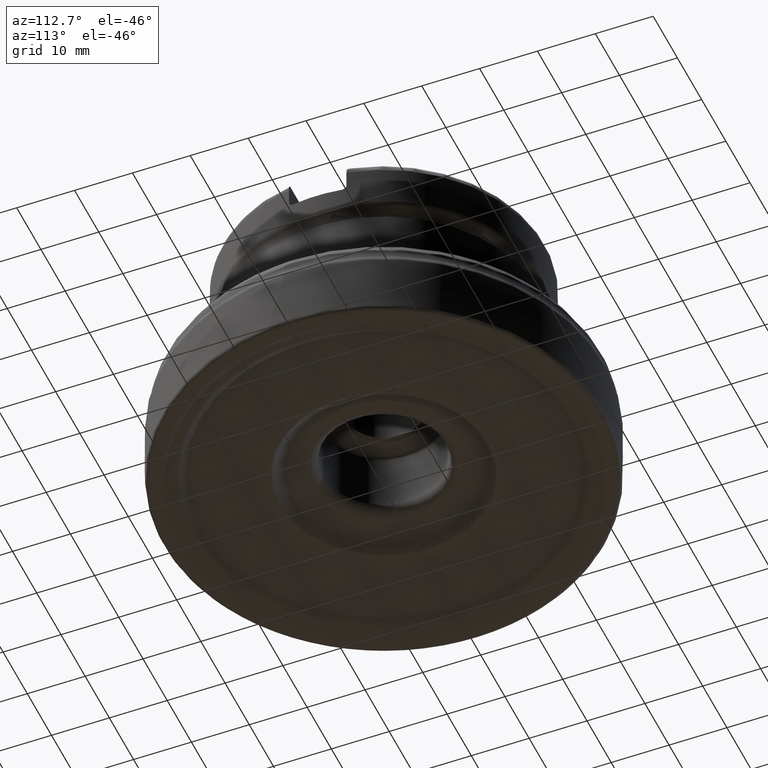
[diagram: clean part render]
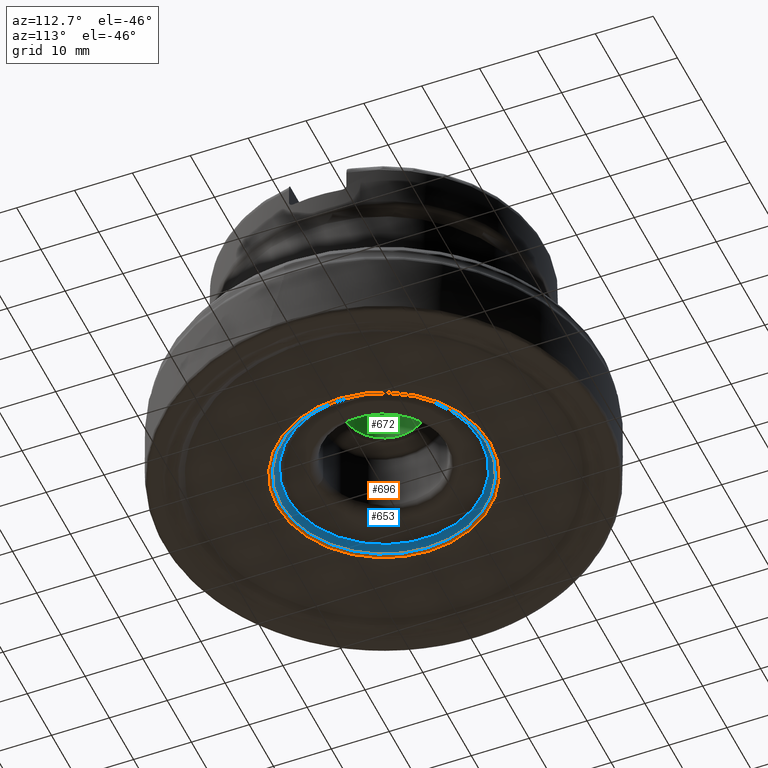
[diagram: same view with three faces highlighted in distinct colors, each labeled with its STEP entity id]
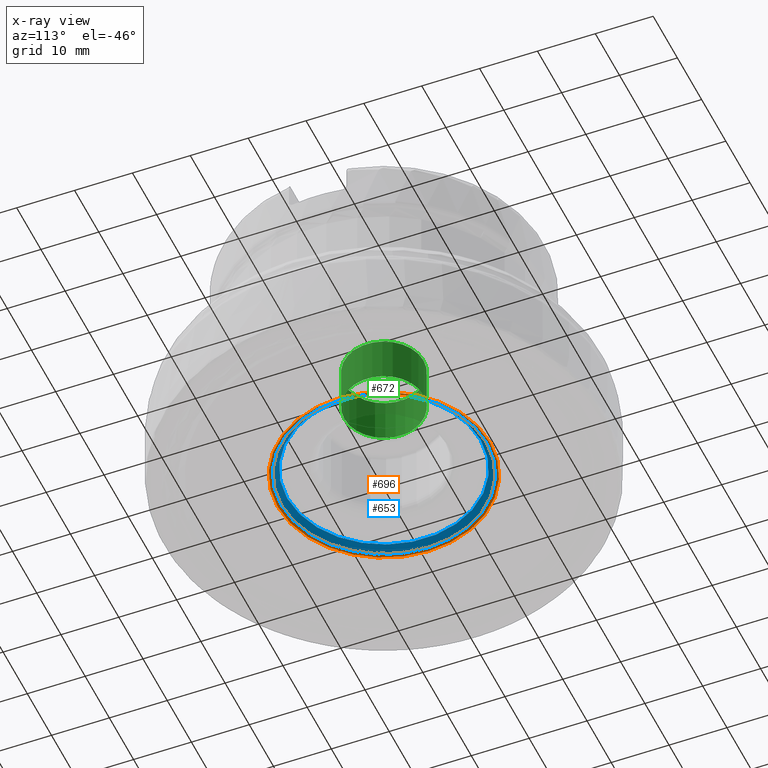
[diagram: x-ray of the same camera — body ghosted, the three highlighted faces saturated]
A machine part, auxiliary view with three faces highlighted in distinct colors.
The next image is the same camera in x-ray (body ghosted, the three faces saturated) — at least one of them is partly hidden behind the body in this view.
Their STEP definitions:

[orange] entity #696 — the highlighted toroidal blend (fillet) surface has major radius 18.3706 mm and minor (blend) radius 0.8 mm.
#575=FACE_BOUND('',#1311,.T.);
#576=FACE_BOUND('',#1312,.T.);
#696=ADVANCED_FACE('',(#575,#576),#971,.T.);
#971=TOROIDAL_SURFACE('',#4711,18.3706424674691,0.8);
#1311=EDGE_LOOP('',(#1957));
#1312=EDGE_LOOP('',(#1958));
#1624=CIRCLE('',#4641,18.3706424674691);
#1626=CIRCLE('',#4644,17.8049570425199);
#1957=ORIENTED_EDGE('',*,*,#3510,.F.);
#1958=ORIENTED_EDGE('',*,*,#3512,.F.);
#3102=VERTEX_POINT('',#5824);
#3104=VERTEX_POINT('',#5829);
#3510=EDGE_CURVE('',#3102,#3102,#1624,.T.);
#3512=EDGE_CURVE('',#3104,#3104,#1626,.T.);
#4641=AXIS2_PLACEMENT_3D('',#5823,#4910,#4911);
#4644=AXIS2_PLACEMENT_3D('',#5828,#4916,#4917);
#4711=AXIS2_PLACEMENT_3D('',#6073,#5066,#5067);
#4910=DIRECTION('',(0.,1.17145536458252E-15,1.));
#4911=DIRECTION('',(0.,-1.,1.16856027508168E-15));
#4916=DIRECTION('',(0.,-1.17145536458252E-15,-1.));
#4917=DIRECTION('',(0.,-1.,1.16915090904233E-15));
#5066=DIRECTION('',(0.,1.17145536458252E-15,1.));
#5067=DIRECTION('',(0.,-1.,1.17635103914573E-15));
#5823=CARTESIAN_POINT('',(0.,1.64003751041553E-15,1.4));
#5824=CARTESIAN_POINT('',(0.,-18.3706424674691,1.40000000000002));
#5828=CARTESIAN_POINT('',(0.,1.91452657635862E-15,1.63431457505076));
#5829=CARTESIAN_POINT('',(0.,-17.8049570425199,1.63431457505078));
#6073=CARTESIAN_POINT('',(0.,2.57720180208155E-15,2.2));

[blue] entity #653 — the highlighted conical surface has half-angle 45 deg.
#400=CONICAL_SURFACE('',#4646,16.1392716175706,45.);
#525=FACE_BOUND('',#1243,.T.);
#526=FACE_BOUND('',#1244,.T.);
#653=ADVANCED_FACE('',(#525,#526),#400,.F.);
#1243=EDGE_LOOP('',(#1808));
#1244=EDGE_LOOP('',(#1809));
#1626=CIRCLE('',#4644,17.8049570425199);
#1627=CIRCLE('',#4645,16.7250580551975);
#1808=ORIENTED_EDGE('',*,*,#3512,.T.);
#1809=ORIENTED_EDGE('',*,*,#3513,.T.);
#3104=VERTEX_POINT('',#5829);
#3105=VERTEX_POINT('',#5831);
#3512=EDGE_CURVE('',#3104,#3104,#1626,.T.);
#3513=EDGE_CURVE('',#3105,#3105,#1627,.T.);
#4644=AXIS2_PLACEMENT_3D('',#5828,#4916,#4917);
#4645=AXIS2_PLACEMENT_3D('',#5830,#4918,#4919);
#4646=AXIS2_PLACEMENT_3D('',#5832,#4920,#4921);
#4916=DIRECTION('',(0.,-1.17145536458252E-15,-1.));
#4917=DIRECTION('',(0.,-1.,1.16915090904233E-15));
#4918=DIRECTION('',(0.,1.17145536458252E-15,1.));
#4919=DIRECTION('',(0.,1.,-1.16685030571086E-15));
#4920=DIRECTION('',(0.,-1.17145536458252E-15,-1.));
#4921=DIRECTION('',(0.,1.,-1.23385782567619E-15));
#5828=CARTESIAN_POINT('',(0.,1.91452657635862E-15,1.63431457505076));
#5829=CARTESIAN_POINT('',(0.,-17.8049570425199,1.63431457505078));
#5830=CARTESIAN_POINT('',(0.,3.17958003826461E-15,2.7142135623731));
#5831=CARTESIAN_POINT('',(0.,16.7250580551975,2.71421356237308));
#5832=CARTESIAN_POINT('',(0.,3.86580270312233E-15,3.3));

[green] entity #672 — the highlighted cylindrical surface (bore or boss wall) has radius 6.85 mm, axis along (0, 0, 1).
#440=CYLINDRICAL_SURFACE('',#4682,6.85);
#539=FACE_BOUND('',#1269,.T.);
#540=FACE_BOUND('',#1270,.T.);
#672=ADVANCED_FACE('',(#539,#540),#440,.F.);
#1269=EDGE_LOOP('',(#1893));
#1270=EDGE_LOOP('',(#1894));
#1643=CIRCLE('',#4680,6.85);
#1644=CIRCLE('',#4681,6.85);
#1893=ORIENTED_EDGE('',*,*,#3557,.T.);
#1894=ORIENTED_EDGE('',*,*,#3558,.T.);
#3135=VERTEX_POINT('',#6020);
#3136=VERTEX_POINT('',#6022);
#3557=EDGE_CURVE('',#3135,#3135,#1643,.T.);
#3558=EDGE_CURVE('',#3136,#3136,#1644,.T.);
#4680=AXIS2_PLACEMENT_3D('',#6019,#5004,#5005);
#4681=AXIS2_PLACEMENT_3D('',#6021,#5006,#5007);
#4682=AXIS2_PLACEMENT_3D('',#6023,#5008,#5009);
#5004=DIRECTION('',(0.,1.17145536458252E-15,1.));
#5005=DIRECTION('',(0.,-1.,1.01297721224923E-15));
#5006=DIRECTION('',(0.,-1.17145536458252E-15,-1.));
#5007=DIRECTION('',(0.,1.,-1.01297721224923E-15));
#5008=DIRECTION('',(0.,1.17145536458252E-15,1.));
#5009=DIRECTION('',(0.,-1.,1.01297721224923E-15));
#6019=CARTESIAN_POINT('',(0.,2.91692385781049E-14,24.9));
#6020=CARTESIAN_POINT('',(0.,-6.84999999999997,24.9));
#6021=CARTESIAN_POINT('',(0.,1.98561684296738E-14,16.95));
#6022=CARTESIAN_POINT('',(0.,6.85000000000002,16.95));
#6023=CARTESIAN_POINT('',(0.,5.23054820286097E-14,44.65));